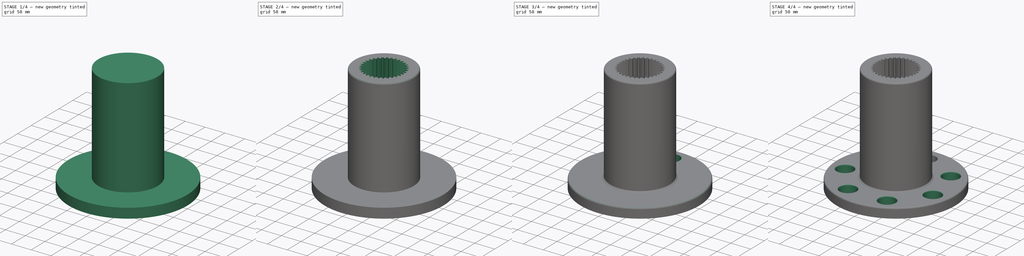
[diagram: build sequence overview — one tinted view per stage of 4, left to right]
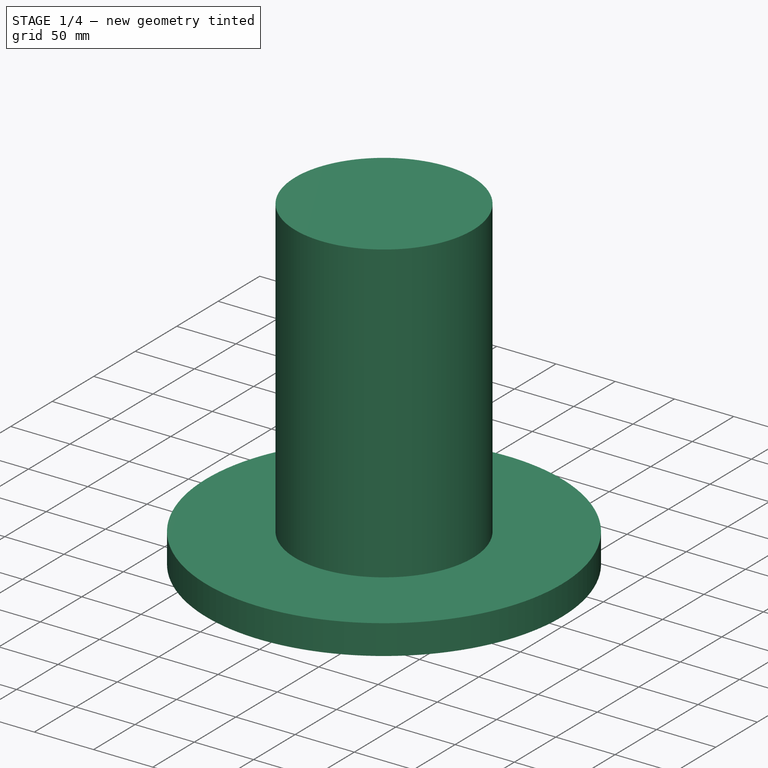
[diagram: stage 1 of 4 — iso view after this stage's code; geometry added in this stage tinted green]
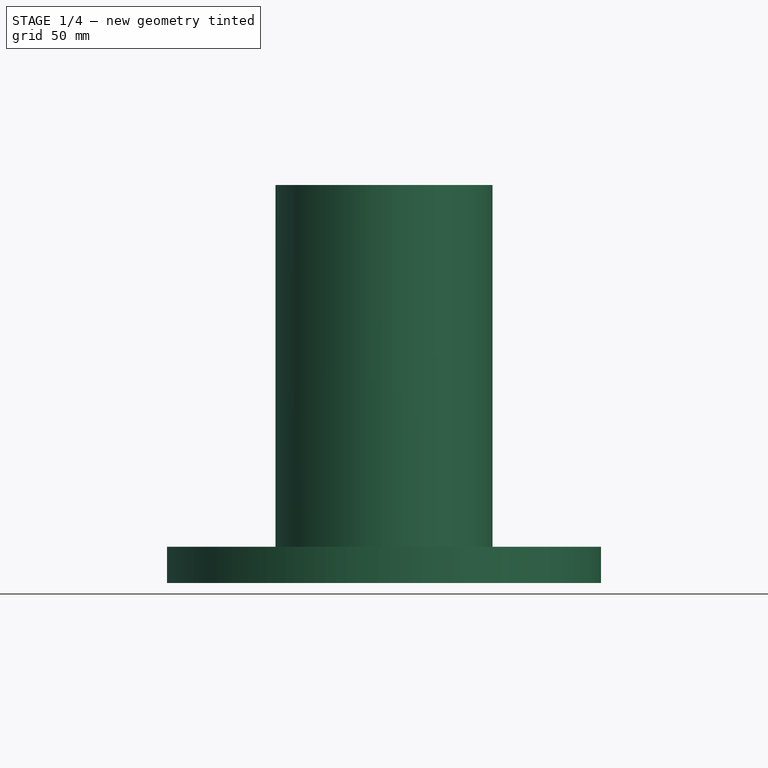
[diagram: stage 1 of 4 — front view after this stage's code; geometry added in this stage tinted green]
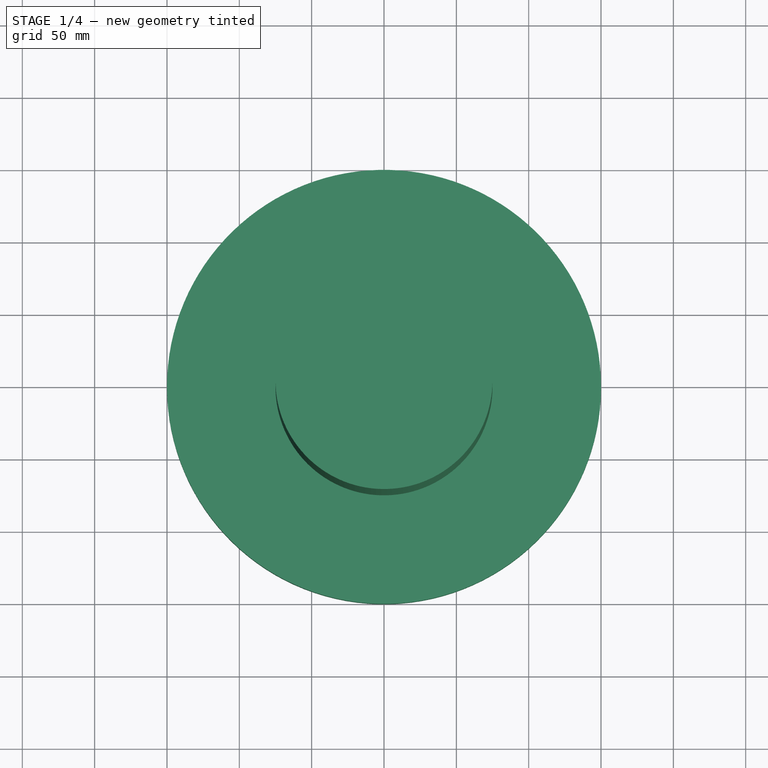
[diagram: stage 1 of 4 — top view after this stage's code; geometry added in this stage tinted green]
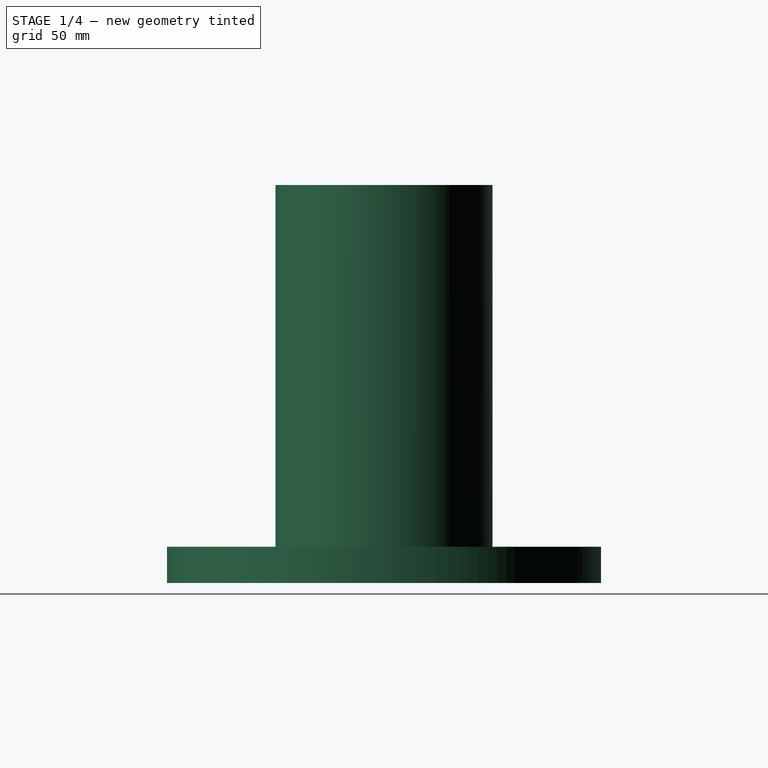
[diagram: stage 1 of 4 — right view after this stage's code; geometry added in this stage tinted green]
FCSTD DOCUMENT  (FreeCAD 0.21R33771 (Git))
Label: val_shlici_flanec
License: All rights reserved
LicenseURL: http://en.wikipedia.org/wiki/All_rights_reserved
objects: Sketcher::SketchObject×4, PartDesign::Fillet×3, PartDesign::Pad×2, PartDesign::Pocket×2, PartDesign::PolarPattern×2, PartDesign::Chamfer×1, PartDesign::Body×1
note: 23 computed .brp shape members not serialized (recipe doc carries the construction recipe); baked Part::Feature solids carry a one-line shape summary decoded from their .brp

FEATURE [Sketcher::SketchObject] Sketch
  FullyConstrained = true
  MapMode = 5
  Support = -> [XY_Plane]
  sketch-geometry (1):
    g0: Circle CenterX=0 CenterY=0 CenterZ=0 NormalX=0 NormalY=0 NormalZ=1 AngleXU=0 Radius=150
  constraints (2):
    c: Coincident(g0,g-1)
    c: Radius(g0) = 150
FEATURE [PartDesign::Pad] Pad
  Direction = (0,0,1)
  Length = 25
  Length2 = 10
  Profile = -> Sketch
  ReferenceAxis = -> Sketch [N_Axis]
  Refine = true
  Type = 0
FEATURE [Sketcher::SketchObject] Sketch001
  FullyConstrained = true
  MapMode = 5
  Placement = pos=(0,0,25) rot=(0,0,1;0rad)
  Support = -> [Pad]
  sketch-geometry (1):
    g0: Circle CenterX=0 CenterY=0 CenterZ=0 NormalX=0 NormalY=0 NormalZ=1 AngleXU=0 Radius=75
  constraints (2):
    c: Coincident(g0,g-1)
    c: Radius(g0) = 75
FEATURE [PartDesign::Pad] Pad001
  BaseFeature = -> Pad
  Direction = (0,0,1)
  Length = 250
  Length2 = 10
  Profile = -> Sketch001
  ReferenceAxis = -> Sketch001 [N_Axis]
  Refine = true
  Type = 0
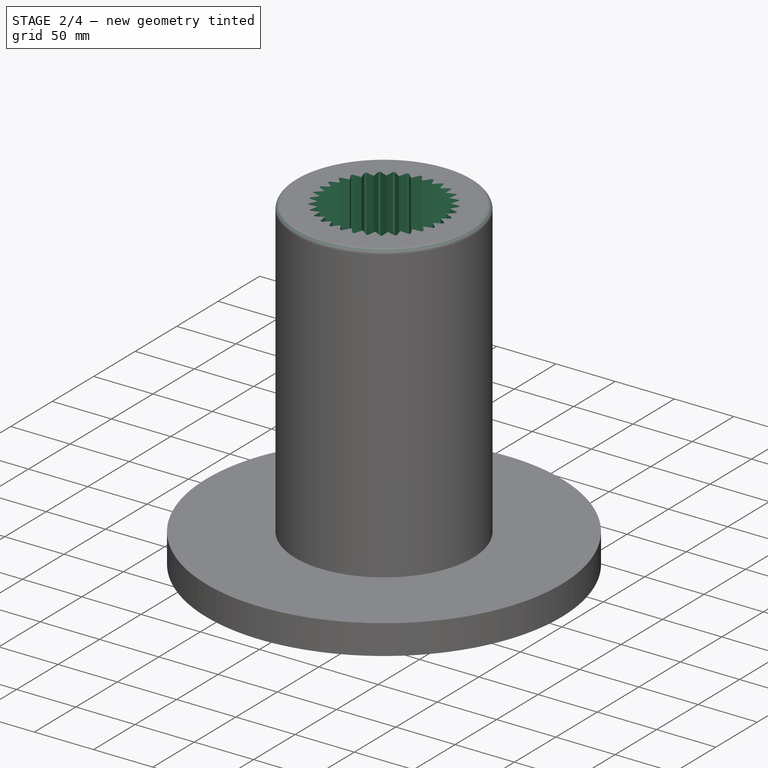
[diagram: stage 2 of 4 — iso view after this stage's code; geometry added in this stage tinted green]
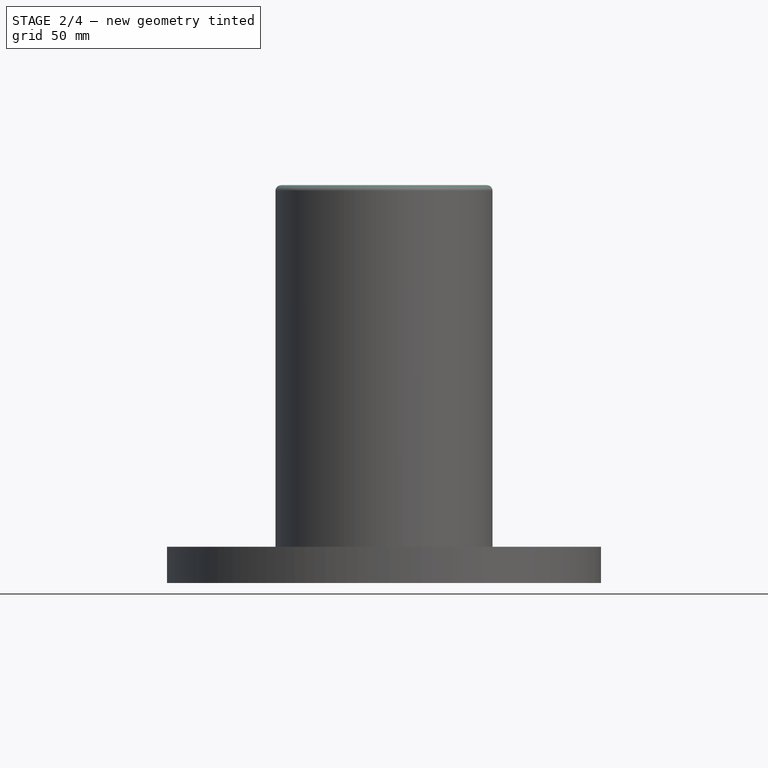
[diagram: stage 2 of 4 — front view after this stage's code; geometry added in this stage tinted green]
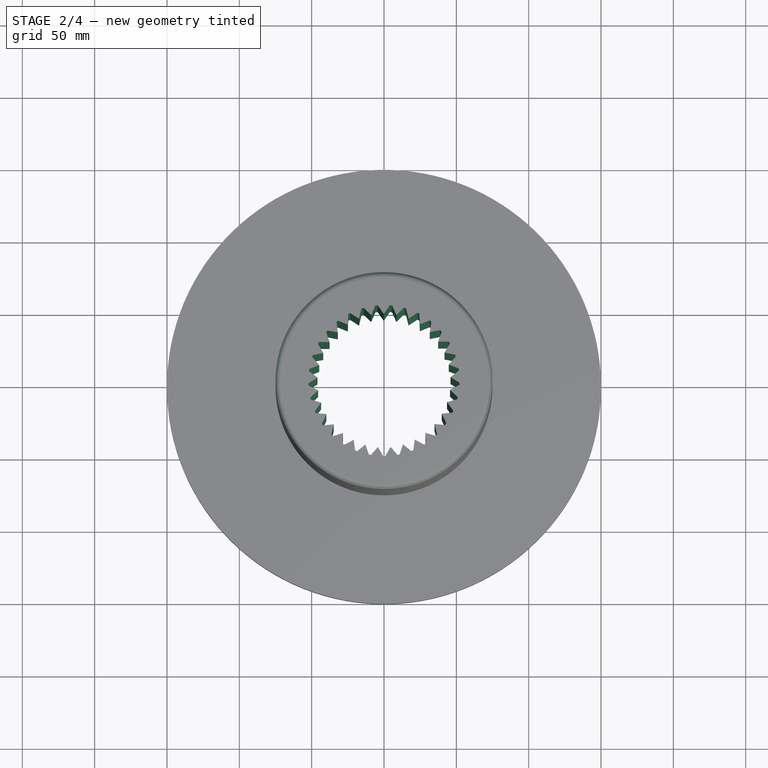
[diagram: stage 2 of 4 — top view after this stage's code; geometry added in this stage tinted green]
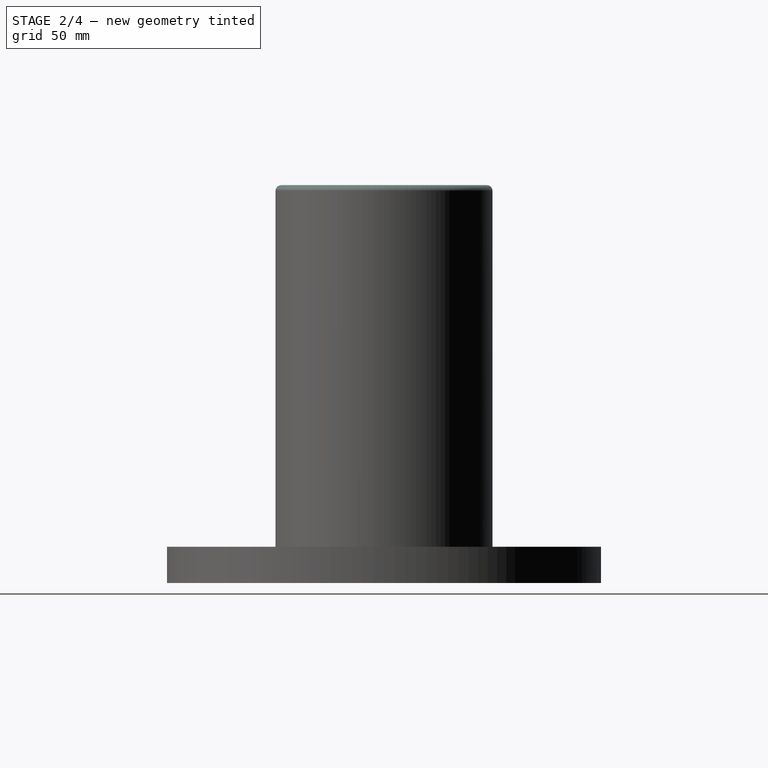
[diagram: stage 2 of 4 — right view after this stage's code; geometry added in this stage tinted green]
FEATURE [Sketcher::SketchObject] Sketch002
  FullyConstrained = false
  MapMode = 5
  Placement = pos=(0,0,275) rot=(0,0,1;0rad)
  Support = -> [Pad001]
  sketch-geometry (36):
    g0: LineSegment StartX=31.6633 StartY=33.4305 StartZ=0 EndX=24.7643 EndY=38.8187 EndZ=0
    g1: LineSegment StartX=24.7643 StartY=38.8187 StartZ=0 EndX=16.9703 EndY=42.8039 EndZ=0
    g2: LineSegment StartX=16.9703 StartY=42.8039 StartZ=0 EndX=8.56297 EndY=45.242 EndZ=0
    g3: LineSegment StartX=8.56297 StartY=45.242 StartZ=0 EndX=-0.153875 EndY=46.045 EndZ=0
    g4: LineSegment StartX=-8.86516 StartY=45.1837 StartZ=0 EndX=-17.256 EndY=42.6895 EndZ=0
    g5: LineSegment StartX=-17.256 StartY=42.6895 StartZ=0 EndX=-25.0232 EndY=38.6523 EndZ=0
    g6: LineSegment StartX=-25.0232 StartY=38.6523 StartZ=0 EndX=-31.886 EndY=33.2181 EndZ=0
    g7: LineSegment StartX=-31.886 StartY=33.2181 StartZ=0 EndX=-37.5964 EndY=26.5834 EndZ=0
    g8: LineSegment StartX=-37.5964 StartY=26.5834 StartZ=0 EndX=-41.9479 EndY=18.9878 EndZ=0
    g9: LineSegment StartX=-41.9479 StartY=18.9878 StartZ=0 EndX=-44.7833 EndY=10.706 EndZ=0
    g10: LineSegment StartX=-44.7833 StartY=10.706 StartZ=0 EndX=-46.0001 EndY=2.03721 EndZ=0
    g11: LineSegment StartX=-46.0001 StartY=2.03721 StartZ=0 EndX=-45.5544 EndY=-6.70519 EndZ=0
    g12: LineSegment StartX=-45.5544 StartY=-6.70519 StartZ=0 EndX=-43.4622 EndY=-15.2052 EndZ=0
    g13: LineSegment StartX=-43.4622 StartY=-15.2052 StartZ=0 EndX=-39.7992 EndY=-23.1557 EndZ=0
    g14: LineSegment StartX=-39.7992 StartY=-23.1557 StartZ=0 EndX=-34.6977 EndY=-30.2693 EndZ=0
    g15: LineSegment StartX=-34.6977 StartY=-30.2693 StartZ=0 EndX=-28.3422 EndY=-36.2889 EndZ=0
    g16: LineSegment StartX=-28.3422 StartY=-36.2889 StartZ=0 EndX=-20.9623 EndY=-40.9969 EndZ=0
    g17: LineSegment StartX=-20.9623 StartY=-40.9969 StartZ=0 EndX=-12.8247 EndY=-44.2232 EndZ=0
    g18: LineSegment StartX=-12.8247 StartY=-44.2232 StartZ=0 EndX=-4.22367 EndY=-45.8511 EndZ=0
    g19: LineSegment StartX=-4.22367 StartY=-45.8511 StartZ=0 EndX=4.53003 EndY=-45.8218 EndZ=0
    g20: LineSegment StartX=4.53003 StartY=-45.8218 StartZ=0 EndX=13.12 EndY=-44.1365 EndZ=0
    g21: LineSegment StartX=13.12 StartY=-44.1365 StartZ=0 EndX=21.2358 EndY=-40.8559 EndZ=0
    g22: LineSegment StartX=21.2358 StartY=-40.8559 StartZ=0 EndX=28.5841 EndY=-36.0987 EndZ=0
    g23: LineSegment StartX=28.5841 StartY=-36.0987 StartZ=0 EndX=34.8992 EndY=-30.0367 EndZ=0
    g24: LineSegment StartX=34.8992 StartY=-30.0367 StartZ=0 EndX=39.953 EndY=-22.8892 EndZ=0
    g25: LineSegment StartX=39.953 StartY=-22.8892 StartZ=0 EndX=43.5629 EndY=-14.9144 EndZ=0
    g26: LineSegment StartX=43.5629 StartY=-14.9144 StartZ=0 EndX=45.5982 EndY=-6.40057 EndZ=0
    g27: LineSegment StartX=45.5982 StartY=-6.40057 StartZ=0 EndX=45.9855 EndY=2.34461 EndZ=0
    g28: LineSegment StartX=45.9855 StartY=2.34461 StartZ=0 EndX=44.7107 EndY=11.005 EndZ=0
    g29: LineSegment StartX=44.7107 StartY=11.005 StartZ=0 EndX=41.82 EndY=19.2677 EndZ=0
    g30: LineSegment StartX=41.82 StartY=19.2677 StartZ=0 EndX=37.4179 EndY=26.834 EndZ=0
    g31: LineSegment StartX=37.4179 StartY=26.834 StartZ=0 EndX=31.6633 EndY=33.4305 EndZ=0
    g32: Circle CenterX=0 CenterY=0 CenterZ=0 NormalX=0 NormalY=0 NormalZ=1 AngleXU=0 Radius=46.0452
    g33: LineSegment StartX=-8.86516 StartY=45.1837 StartZ=0 EndX=-5.88793 EndY=51.8967 EndZ=0
    g34: LineSegment StartX=-5.88793 StartY=51.8967 StartZ=0 EndX=-4.38793 EndY=52.045 EndZ=0
    g35: LineSegment StartX=-4.38793 StartY=52.045 StartZ=0 EndX=-0.153875 EndY=46.045 EndZ=0
  constraints (72):
    c: Coincident(g0,g1)
    c: Coincident(g1,g2)
    c: Coincident(g2,g3)
    c: Coincident(g4,g5)
    c: Coincident(g5,g6)
    c: Coincident(g6,g7)
    c: Coincident(g7,g8)
    c: Coincident(g8,g9)
    c: Coincident(g9,g10)
    c: Coincident(g10,g11)
    c: Coincident(g11,g12)
    c: Coincident(g12,g13)
    c: Coincident(g13,g14)
    c: Coincident(g14,g15)
    c: Coincident(g15,g16)
    c: Coincident(g16,g17)
    c: Coincident(g17,g18)
    c: Coincident(g18,g19)
    c: Coincident(g19,g20)
    c: Coincident(g20,g21)
    c: Coincident(g21,g22)
    c: Coincident(g22,g23)
    c: Coincident(g23,g24)
    c: Coincident(g24,g25)
    c: Coincident(g25,g26)
    c: Coincident(g26,g27)
    c: Coincident(g27,g28)
    c: Coincident(g28,g29)
    c: Coincident(g29,g30)
    c: Coincident(g30,g31)
    c: Coincident(g31,g0)
    c: Equal(g0, g1-g31) x31
    c: PointOnObject(g0,g32)
    c: PointOnObject(g1,g32)
    c: PointOnObject(g2,g32)
    c: PointOnObject(g3,g32)
    c: PointOnObject(g4,g32)
    c: PointOnObject(g4,g32)
    c: PointOnObject(g5,g32)
    c: PointOnObject(g6,g32)
    c: PointOnObject(g7,g32)
    c: PointOnObject(g8,g32)
    c: PointOnObject(g9,g32)
    c: PointOnObject(g10,g32)
    c: PointOnObject(g11,g32)
    c: PointOnObject(g12,g32)
    c: PointOnObject(g13,g32)
    c: PointOnObject(g14,g32)
    c: PointOnObject(g15,g32)
    c: PointOnObject(g16,g32)
    c: PointOnObject(g17,g32)
    c: PointOnObject(g18,g32)
    c: PointOnObject(g19,g32)
    c: PointOnObject(g20,g32)
    c: PointOnObject(g21,g32)
    c: PointOnObject(g22,g32)
    c: PointOnObject(g23,g32)
    c: PointOnObject(g24,g32)
    c: PointOnObject(g25,g32)
    c: PointOnObject(g26,g32)
    c: PointOnObject(g27,g32)
    c: PointOnObject(g28,g32)
    c: PointOnObject(g29,g32)
    c: PointOnObject(g30,g32)
    c: PointOnObject(g31,g32)
    c: Coincident(g32,g-1)
    c: Coincident(g34,g33)
    c: Coincident(g35,g3)
    c: Equal(g33,g35)
    c: Coincident(g34,g35)
    c: DistanceY(g3,g34) = 6
    c: DistanceX(g33,g34) = 1.5
FEATURE [PartDesign::Pocket] Pocket
  BaseFeature = -> Pad001
  Direction = (0,0,-1)
  Length = 5
  Length2 = 5
  Profile = -> Sketch002
  ReferenceAxis = -> Sketch002 [N_Axis]
  Refine = true
  Type = 1
FEATURE [PartDesign::PolarPattern] PolarPattern
  Angle = 360
  Axis = -> Sketch002 [N_Axis]
  BaseFeature = -> Pocket
  Occurrences = 33
  Originals = -> [Pocket]
  Refine = true
FEATURE [PartDesign::Fillet] Fillet
  Base = -> PolarPattern [Edge303]
  BaseFeature = -> PolarPattern
  Radius = 4
  Refine = true
  SupportTransform = false
  UseAllEdges = false
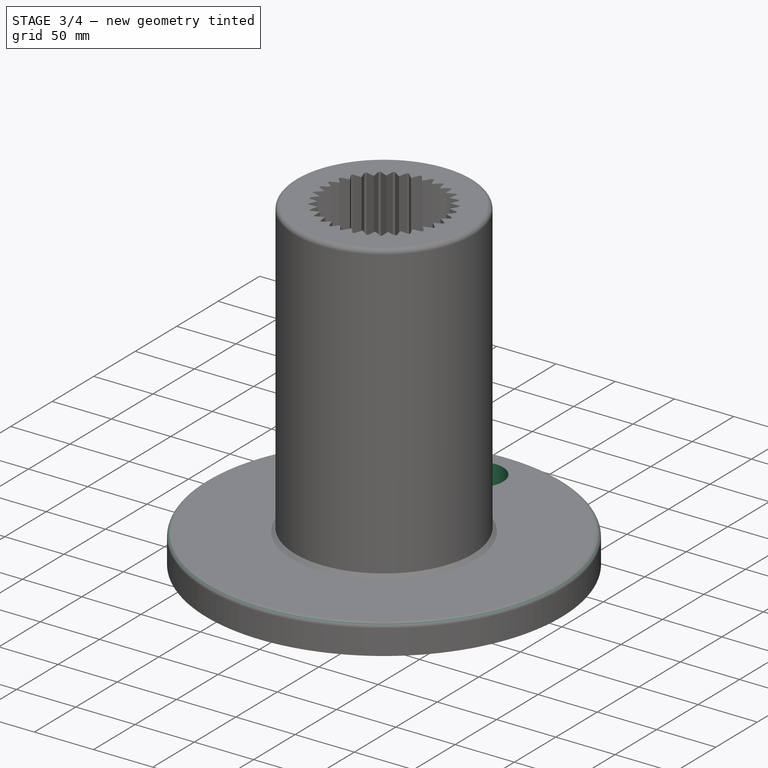
[diagram: stage 3 of 4 — iso view after this stage's code; geometry added in this stage tinted green]
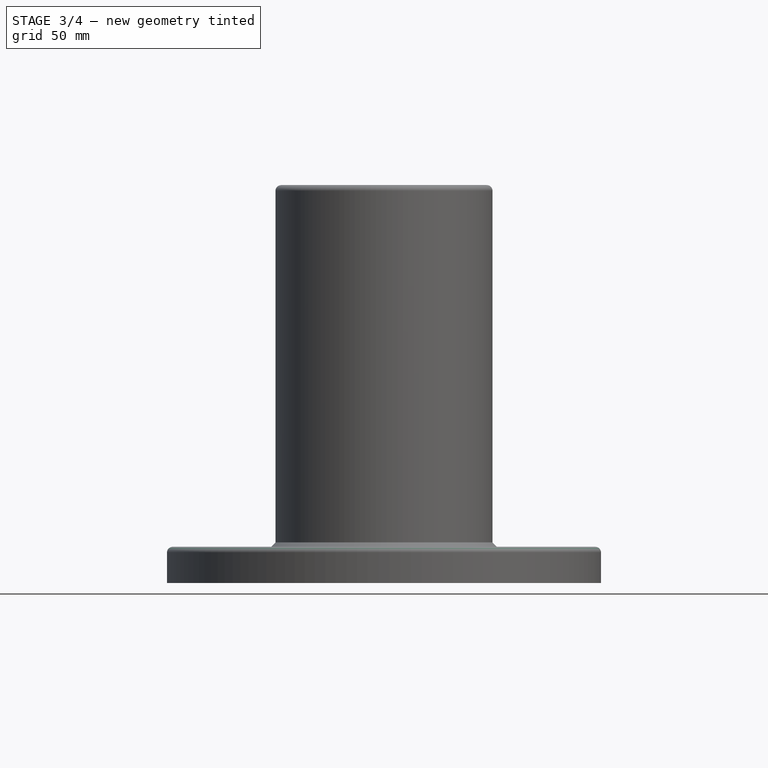
[diagram: stage 3 of 4 — front view after this stage's code; geometry added in this stage tinted green]
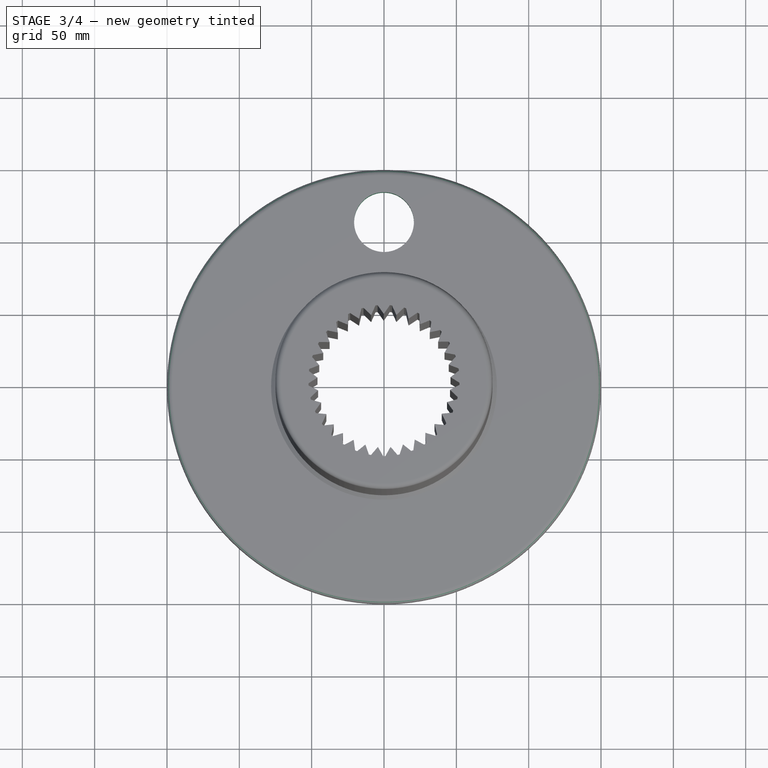
[diagram: stage 3 of 4 — top view after this stage's code; geometry added in this stage tinted green]
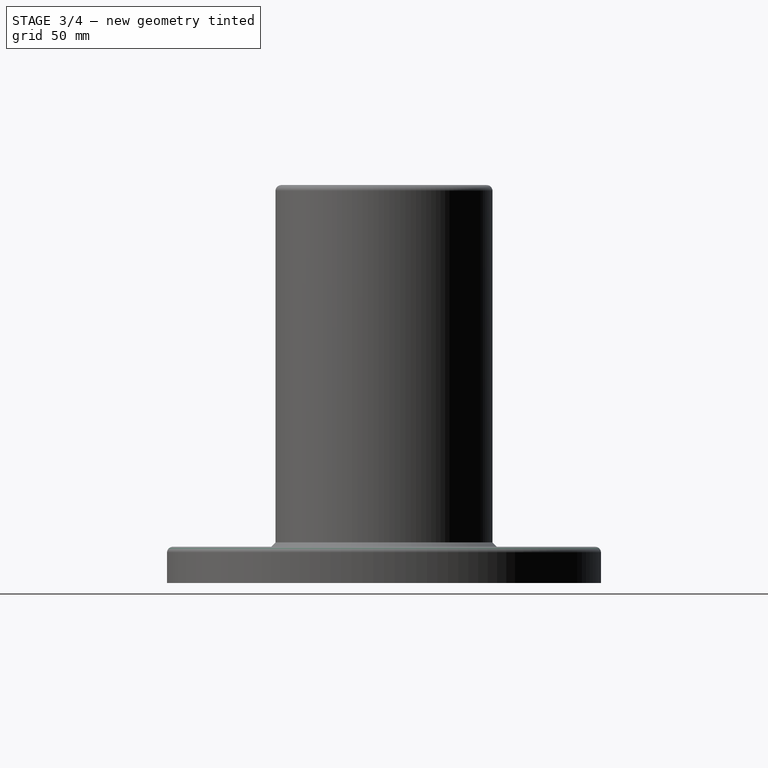
[diagram: stage 3 of 4 — right view after this stage's code; geometry added in this stage tinted green]
FEATURE [PartDesign::Chamfer] Chamfer
  Angle = 45
  Base = -> Fillet [Edge3]
  BaseFeature = -> Fillet
  ChamferType = 0
  FlipDirection = false
  Refine = true
  Size = 3
  Size2 = 1
  SupportTransform = false
  UseAllEdges = false
FEATURE [PartDesign::Fillet] Fillet001
  Base = -> Chamfer [Edge8]
  BaseFeature = -> Chamfer
  Radius = 4
  Refine = true
  SupportTransform = false
  UseAllEdges = false
FEATURE [Sketcher::SketchObject] Sketch003
  FullyConstrained = false
  MapMode = 5
  Placement = pos=(0,0,25) rot=(0,0,1;0rad)
  Support = -> [Fillet001]
  sketch-geometry (1):
    g0: Circle CenterX=0 CenterY=113.89 CenterZ=0 NormalX=0 NormalY=0 NormalZ=1 AngleXU=0 Radius=20.6615
  constraints (1):
    c: PointOnObject(g0,g-2)
FEATURE [PartDesign::Pocket] Pocket001
  BaseFeature = -> Fillet001
  Direction = (0,0,-1)
  Length = 5
  Length2 = 5
  Profile = -> Sketch003
  ReferenceAxis = -> Sketch003 [N_Axis]
  Refine = true
  Type = 1
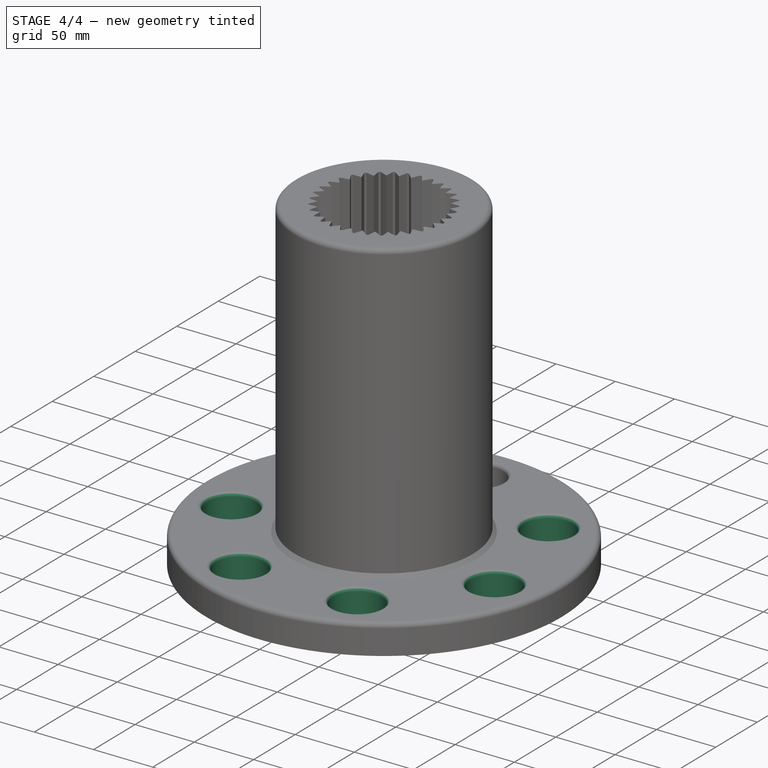
[diagram: stage 4 of 4 — iso view after this stage's code; geometry added in this stage tinted green]
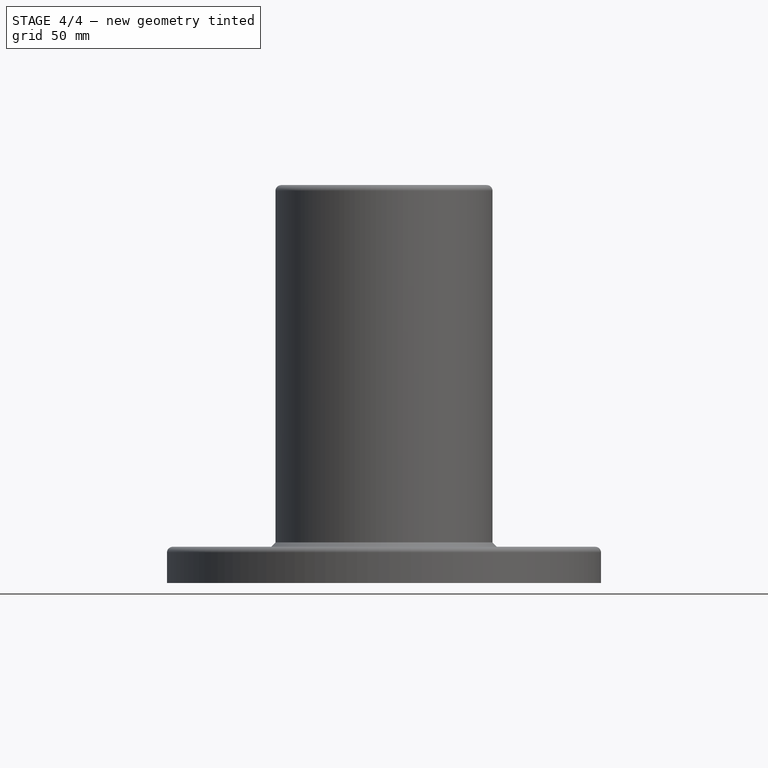
[diagram: stage 4 of 4 — front view after this stage's code; geometry added in this stage tinted green]
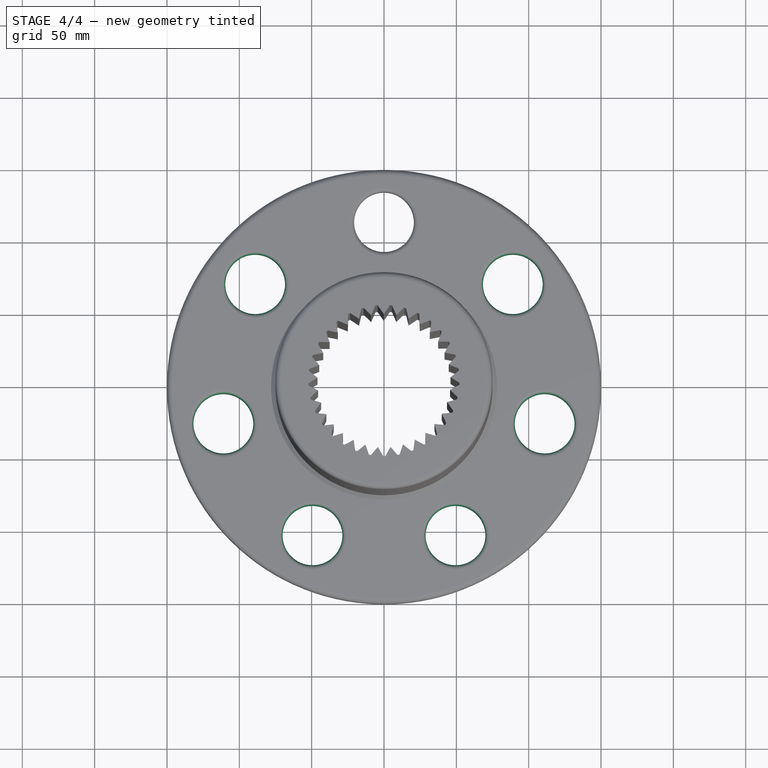
[diagram: stage 4 of 4 — top view after this stage's code; geometry added in this stage tinted green]
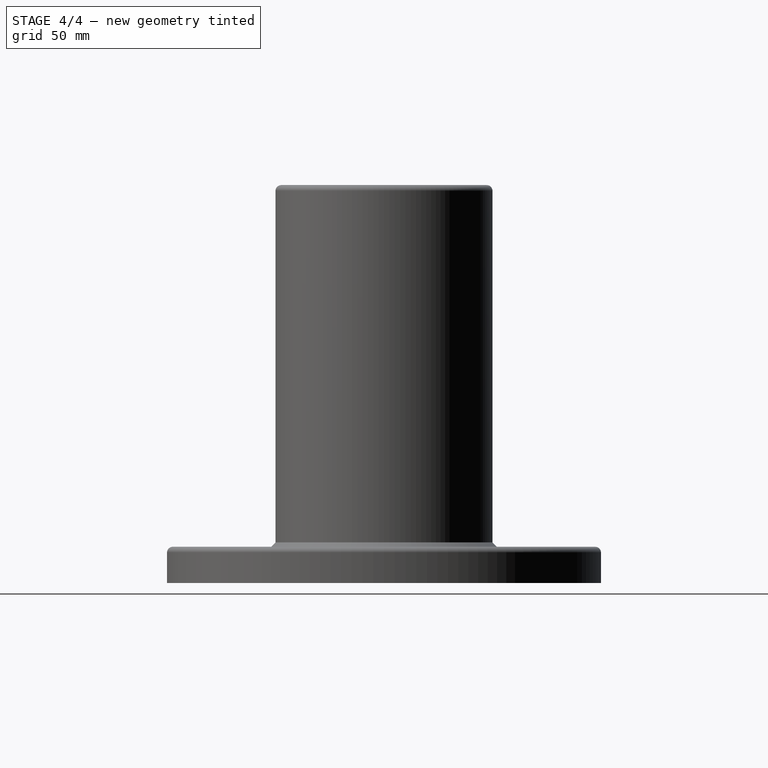
[diagram: stage 4 of 4 — right view after this stage's code; geometry added in this stage tinted green]
FEATURE [PartDesign::PolarPattern] PolarPattern001
  Angle = 360
  Axis = -> Sketch003 [N_Axis]
  BaseFeature = -> Pocket001
  Occurrences = 7
  Originals = -> [Pocket001]
  Refine = true
FEATURE [PartDesign::Fillet] Fillet002
  Base = -> PolarPattern001 [Edge7,Edge8,Edge3,Edge9,Edge6,Edge4,Edge2]
  BaseFeature = -> PolarPattern001
  Radius = 3
  Refine = true
  SupportTransform = false
  UseAllEdges = false
FEATURE [PartDesign::Body] Body
  Group = -> [Sketch,Pad,Sketch001,Pad001,Sketch002,Pocket,PolarPattern,Fillet,Chamfer,Fillet001,Sketch003,Pocket001,PolarPattern001,Fillet002]
  Origin = -> Origin
  Tip = -> Fillet002
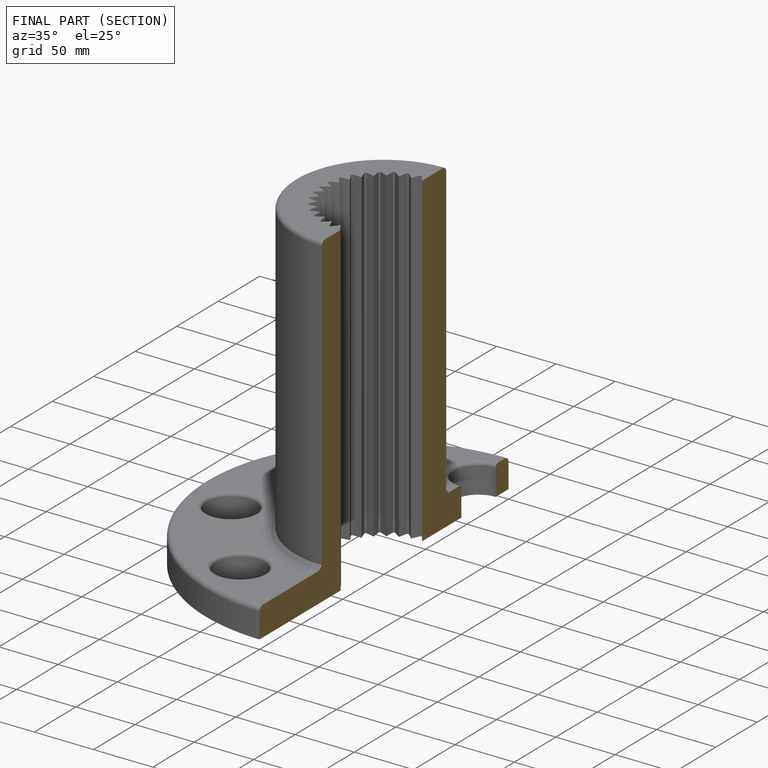
[diagram: finished part — half-section view (interior)]
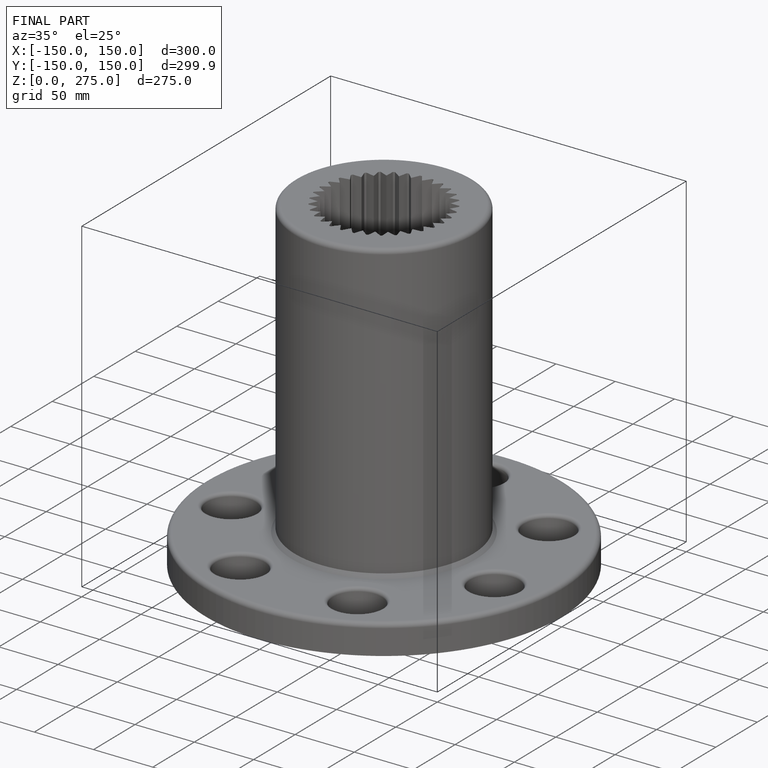
[diagram: finished part — iso view with bounding-box wireframe]
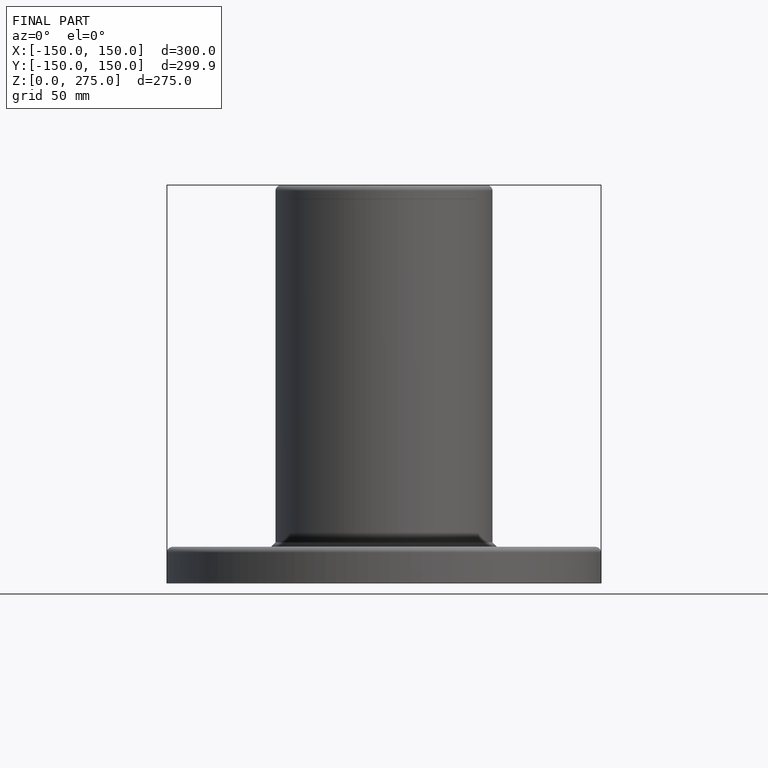
[diagram: finished part — front view with bounding-box wireframe]
